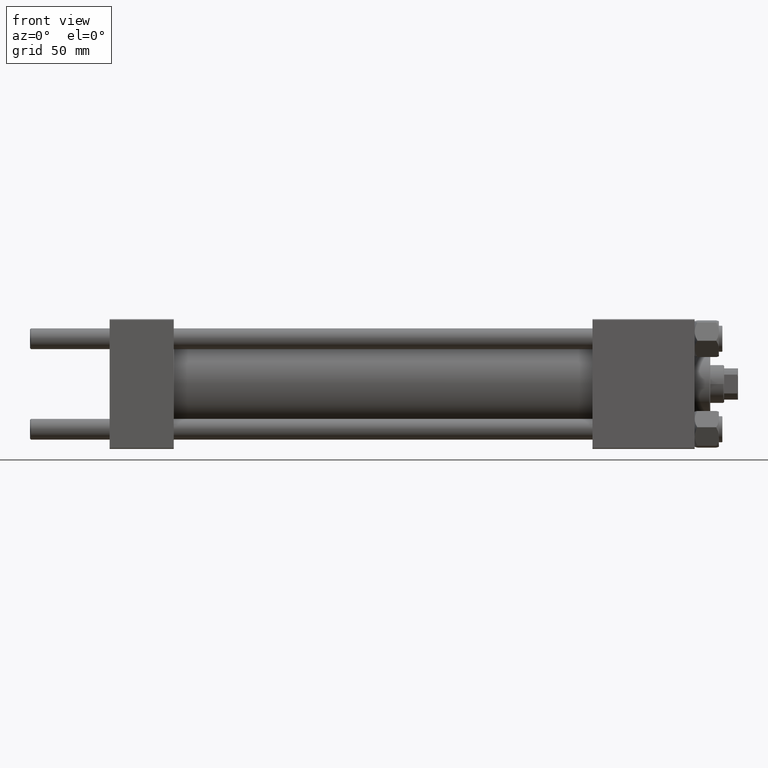
[diagram: clean part render]
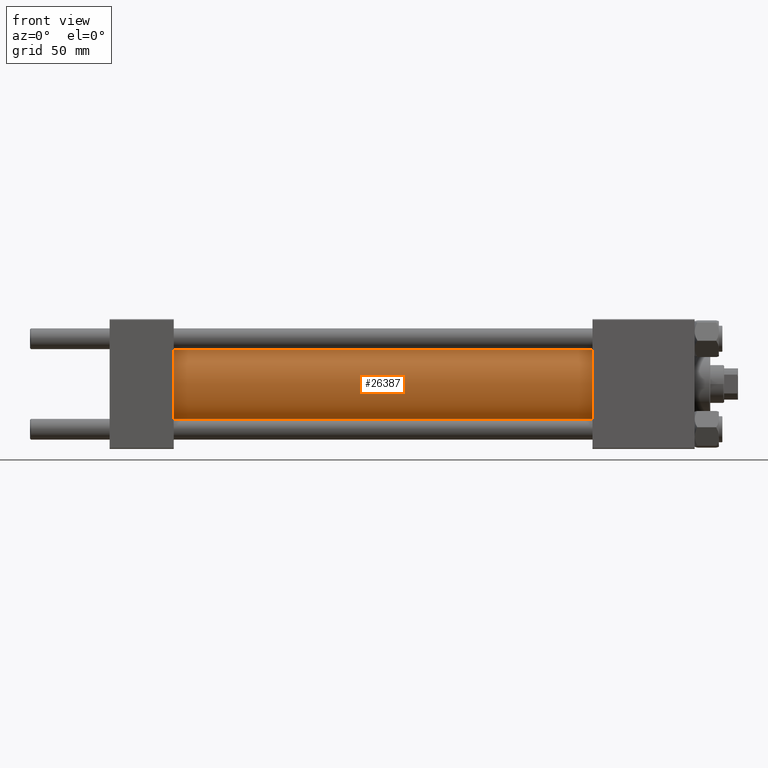
[diagram: same view with one face highlighted and labeled with its STEP entity id]
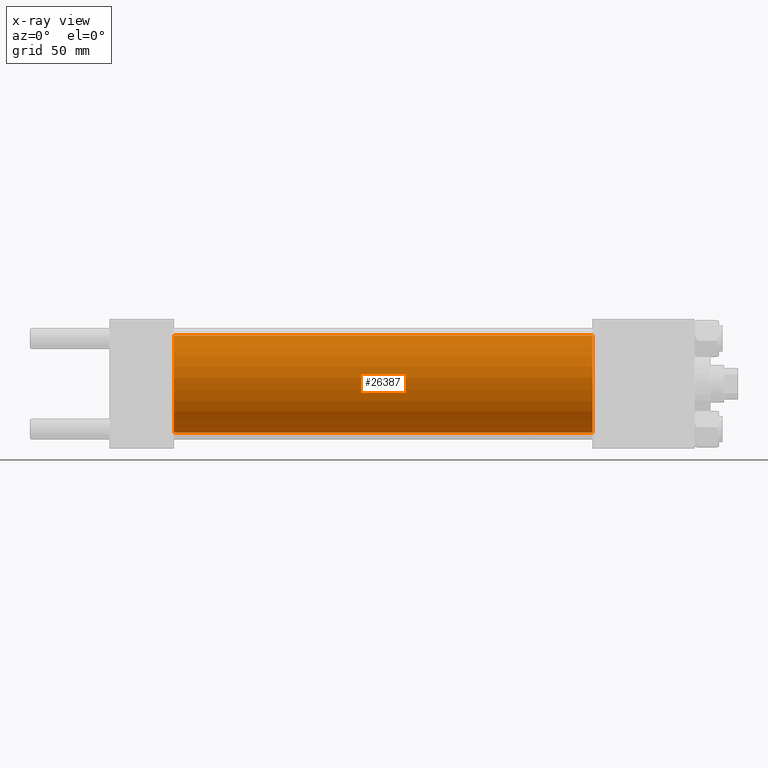
[diagram: x-ray of the same camera — body ghosted, the highlighted face saturated]
A machine part, front view. The second image highlights one B-rep face of the part: STEP entity #26387.
The next image is the same camera in x-ray: the body ghosted, the highlighted face saturated — about 0% of this face is hidden behind the body in this view.
In plain terms, the highlighted cylindrical surface (partial cylindrical patch) has radius 28 mm, axis along (-1, -0, -0).
Its self-contained STEP definition (entity closure, byte-faithful):
#143 = CARTESIAN_POINT ( 'NONE',  ( 278.9999999999999432, 0.000000000000000000, 0.000000000000000000 ) ) ;
#870 = VECTOR ( 'NONE', #37811, 1000.000000000000000 ) ;
#3332 = CARTESIAN_POINT ( 'NONE',  ( 278.9999999999999432, 3.429011037612589276E-15, -28.00000000000000000 ) ) ;
#4455 = CARTESIAN_POINT ( 'NONE',  ( 37.00000000000000711, 3.429011037612589276E-15, -28.00000000000000000 ) ) ;
#5509 = DIRECTION ( 'NONE',  ( 0.000000000000000000, 0.000000000000000000, 1.000000000000000000 ) ) ;
#6216 = ORIENTED_EDGE ( 'NONE', *, *, #24212, .T. ) ;
#6635 = CIRCLE ( 'NONE', #46115, 28.00000000000000000 ) ;
#8524 = CARTESIAN_POINT ( 'NONE',  ( 37.00000000000000711, 0.000000000000000000, 28.00000000000000000 ) ) ;
#8722 = ORIENTED_EDGE ( 'NONE', *, *, #26833, .F. ) ;
#9769 = DIRECTION ( 'NONE',  ( -1.000000000000000000, -0.000000000000000000, -0.000000000000000000 ) ) ;
#9782 = CIRCLE ( 'NONE', #17053, 28.00000000000000000 ) ;
#11773 = DIRECTION ( 'NONE',  ( 1.000000000000000000, 0.000000000000000000, 0.000000000000000000 ) ) ;
#13348 = DIRECTION ( 'NONE',  ( 1.000000000000000000, -0.000000000000000000, 0.000000000000000000 ) ) ;
#13552 = CARTESIAN_POINT ( 'NONE',  ( 278.9999999999999432, 0.000000000000000000, 28.00000000000000000 ) ) ;
#13751 = ORIENTED_EDGE ( 'NONE', *, *, #24435, .F. ) ;
#14383 = EDGE_LOOP ( 'NONE', ( #8722, #13751, #6216, #49541 ) ) ;
#14661 = VERTEX_POINT ( 'NONE', #4455 ) ;
#15207 = CYLINDRICAL_SURFACE ( 'NONE', #31522, 28.00000000000000000 ) ;
#15546 = DIRECTION ( 'NONE',  ( 0.000000000000000000, 0.000000000000000000, -1.000000000000000000 ) ) ;
#17053 = AXIS2_PLACEMENT_3D ( 'NONE', #143, #11773, #15546 ) ;
#19248 = DIRECTION ( 'NONE',  ( -1.000000000000000000, -0.000000000000000000, -0.000000000000000000 ) ) ;
#23411 = CARTESIAN_POINT ( 'NONE',  ( 278.9999999999999432, 3.429011037612589276E-15, -28.00000000000000000 ) ) ;
#23543 = DIRECTION ( 'NONE',  ( 0.000000000000000000, 0.000000000000000000, 1.000000000000000000 ) ) ;
#24212 = EDGE_CURVE ( 'NONE', #30876, #33021, #48878, .T. ) ;
#24435 = EDGE_CURVE ( 'NONE', #30876, #48657, #9782, .T. ) ;
#26218 = LINE ( 'NONE', #23411, #870 ) ;
#26387 = ADVANCED_FACE ( 'NONE', ( #34655 ), #15207, .T. ) ;
#26833 = EDGE_CURVE ( 'NONE', #48657, #14661, #26218, .T. ) ;
#28351 = VECTOR ( 'NONE', #9769, 1000.000000000000000 ) ;
#30613 = CARTESIAN_POINT ( 'NONE',  ( 278.9999999999999432, 0.000000000000000000, 0.000000000000000000 ) ) ;
#30876 = VERTEX_POINT ( 'NONE', #49148 ) ;
#31522 = AXIS2_PLACEMENT_3D ( 'NONE', #30613, #19248, #23543 ) ;
#33021 = VERTEX_POINT ( 'NONE', #8524 ) ;
#34655 = FACE_OUTER_BOUND ( 'NONE', #14383, .T. ) ;
#37811 = DIRECTION ( 'NONE',  ( -1.000000000000000000, -0.000000000000000000, -0.000000000000000000 ) ) ;
#40851 = CARTESIAN_POINT ( 'NONE',  ( 37.00000000000000711, 0.000000000000000000, 0.000000000000000000 ) ) ;
#44908 = EDGE_CURVE ( 'NONE', #33021, #14661, #6635, .T. ) ;
#46115 = AXIS2_PLACEMENT_3D ( 'NONE', #40851, #13348, #5509 ) ;
#48657 = VERTEX_POINT ( 'NONE', #3332 ) ;
#48878 = LINE ( 'NONE', #13552, #28351 ) ;
#49148 = CARTESIAN_POINT ( 'NONE',  ( 278.9999999999999432, 0.000000000000000000, 28.00000000000000000 ) ) ;
#49541 = ORIENTED_EDGE ( 'NONE', *, *, #44908, .T. ) ;